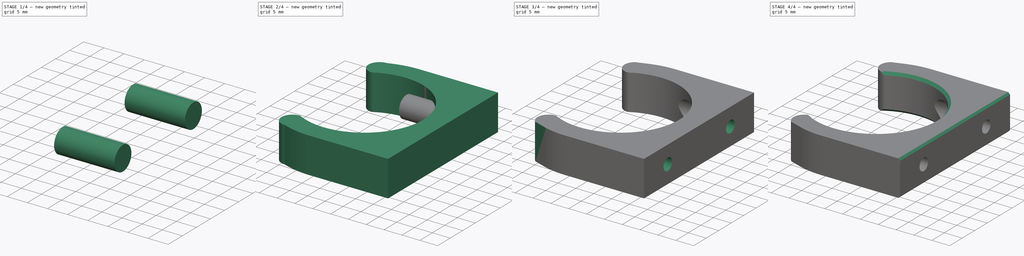
[diagram: build sequence overview — one tinted view per stage of 4, left to right]
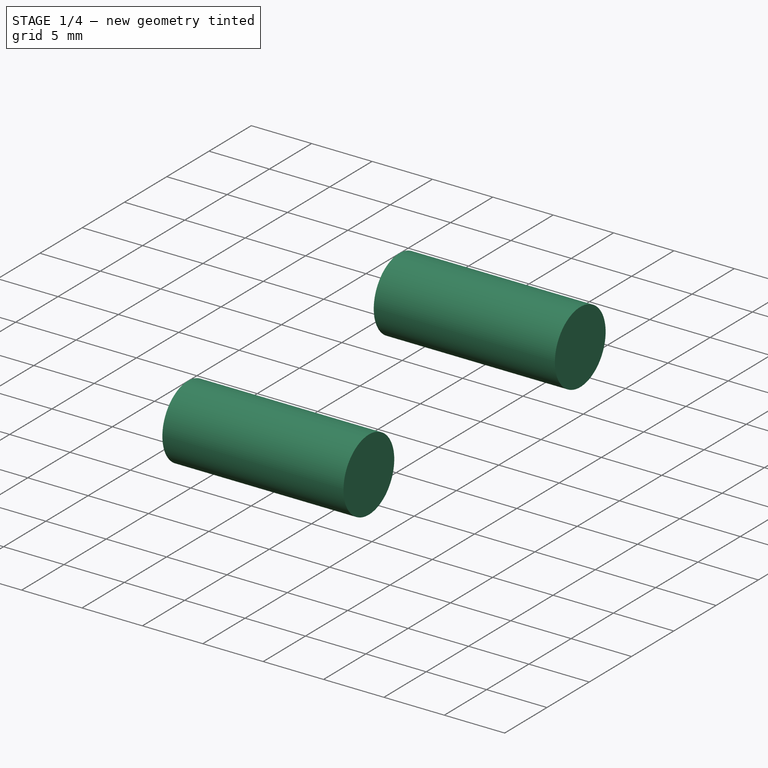
[diagram: stage 1 of 4 — iso view after this stage's code; geometry added in this stage tinted green]
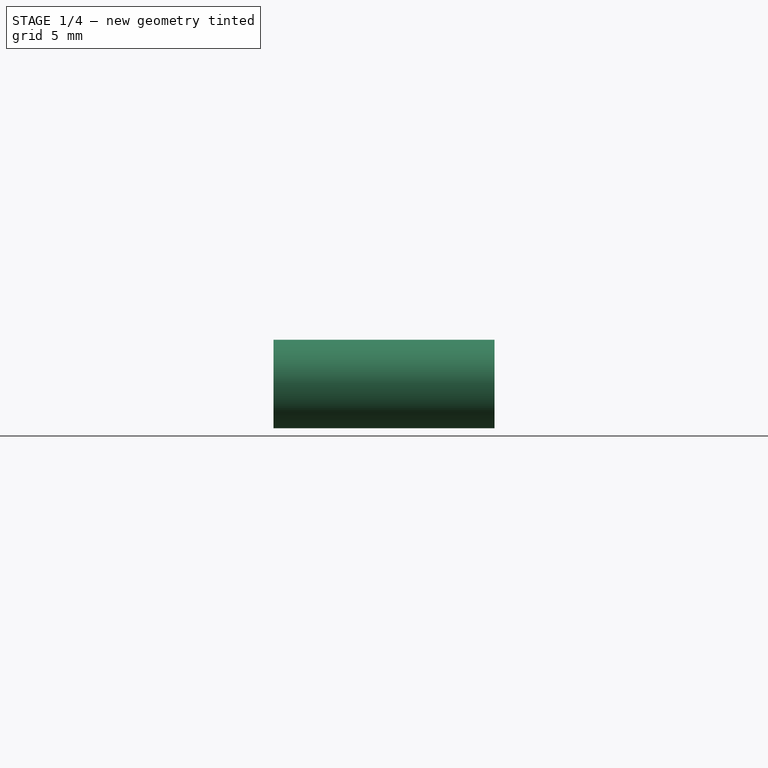
[diagram: stage 1 of 4 — front view after this stage's code; geometry added in this stage tinted green]
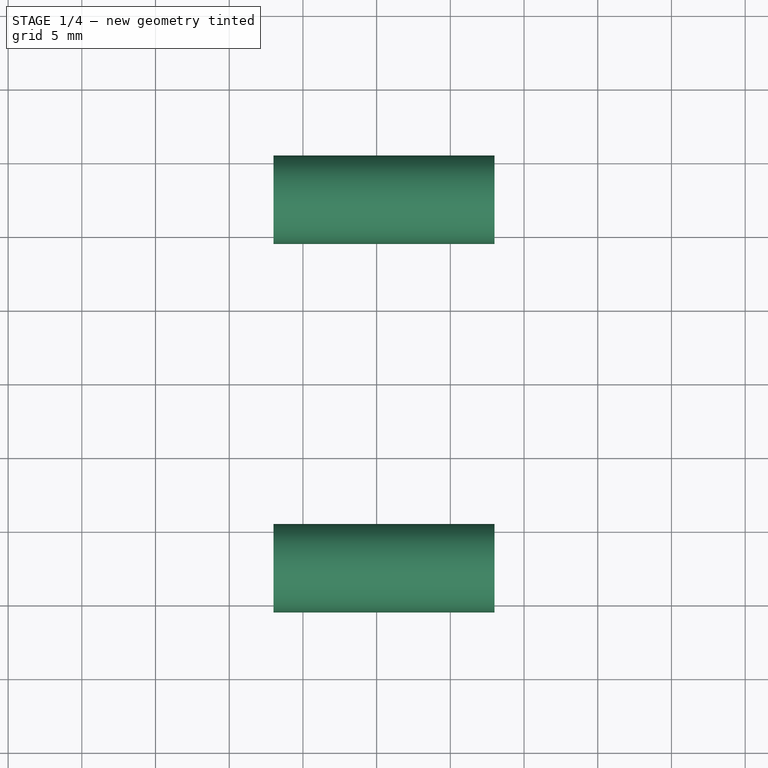
[diagram: stage 1 of 4 — top view after this stage's code; geometry added in this stage tinted green]
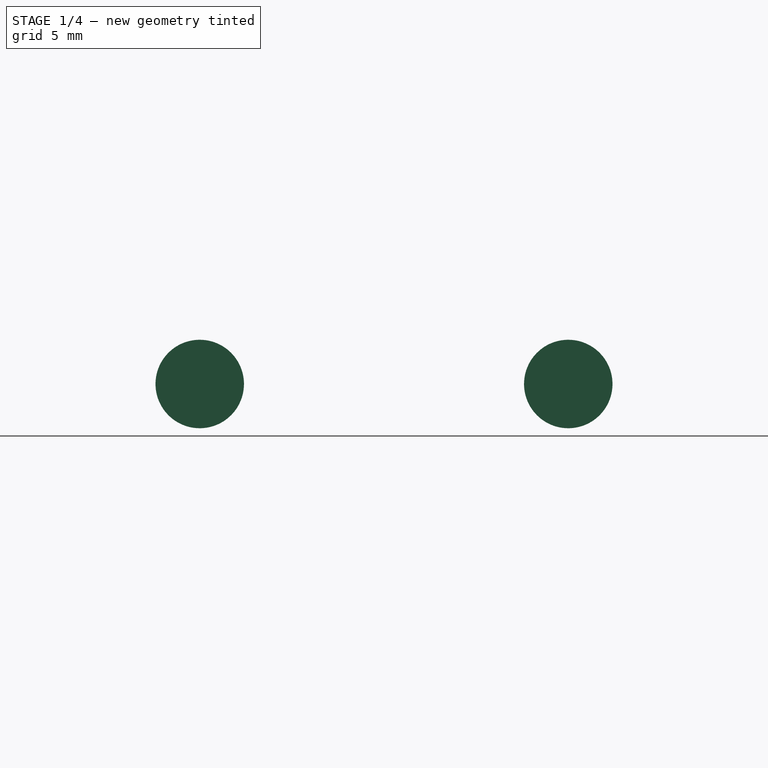
[diagram: stage 1 of 4 — right view after this stage's code; geometry added in this stage tinted green]
FCSTD DOCUMENT  (FreeCAD 0.16R6712 (Git))
Label: cacifo
License: CC-BY 3.0
LicenseURL: http://creativecommons.org/licenses/by/3.0/
objects: PartDesign::Chamfer×3, Sketcher::SketchObject×2, Part::Cylinder×2, PartDesign::Pad×1, PartDesign::Pocket×1, Part::MultiFuse×1, Part::Cut×1
note: 13 computed .brp shape members not serialized (recipe doc carries the construction recipe); baked Part::Feature solids carry a one-line shape summary decoded from their .brp

FEATURE [Part::Cylinder] Cylinder  label="Cilindro"
  Angle = 360
  Height = 15
  Placement = pos=(18,12.5,5) rot=(0,-1,0;1.5708rad)
  Radius = 3
FEATURE [Part::Cylinder] Cylinder001  label="Cilindro001"
  Angle = 360
  Height = 15
  Placement = pos=(18,-12.5,5) rot=(0,-1,0;1.5708rad)
  Radius = 3
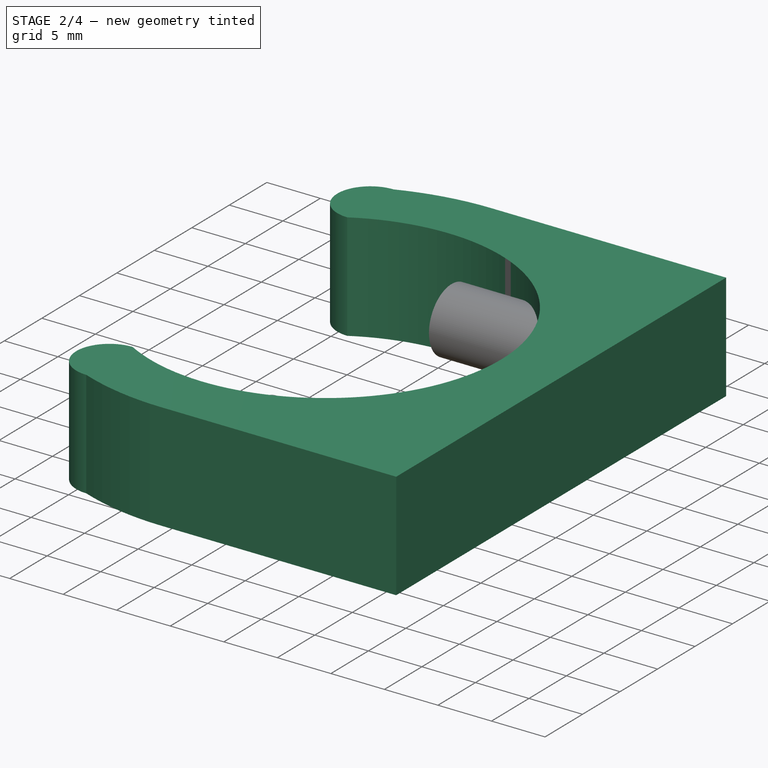
[diagram: stage 2 of 4 — iso view after this stage's code; geometry added in this stage tinted green]
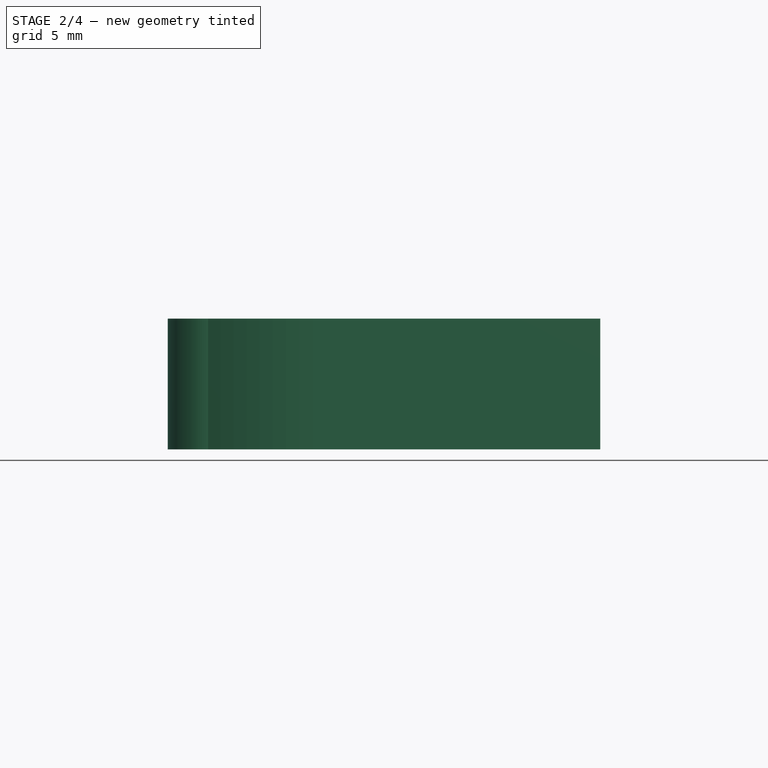
[diagram: stage 2 of 4 — front view after this stage's code; geometry added in this stage tinted green]
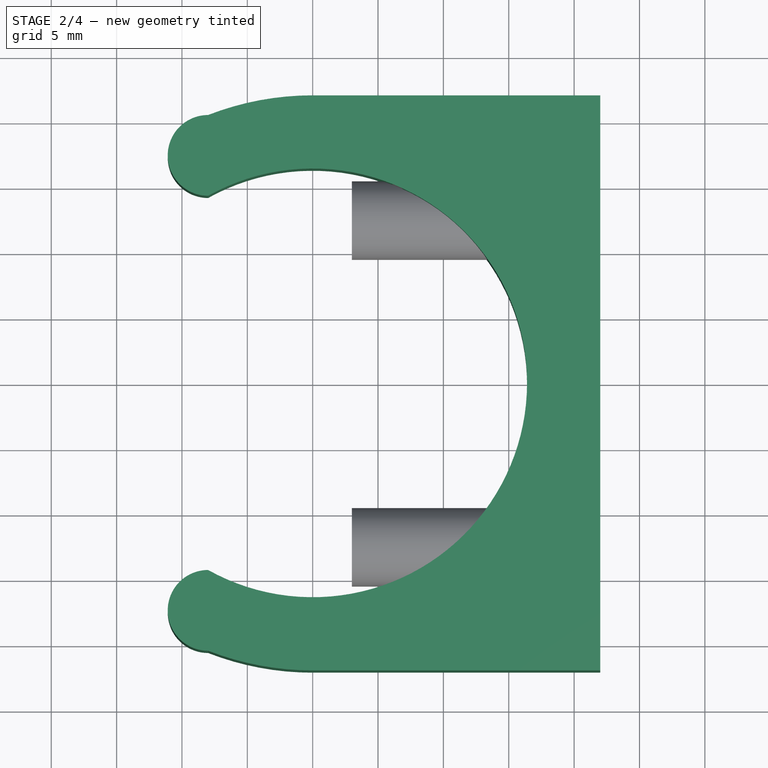
[diagram: stage 2 of 4 — top view after this stage's code; geometry added in this stage tinted green]
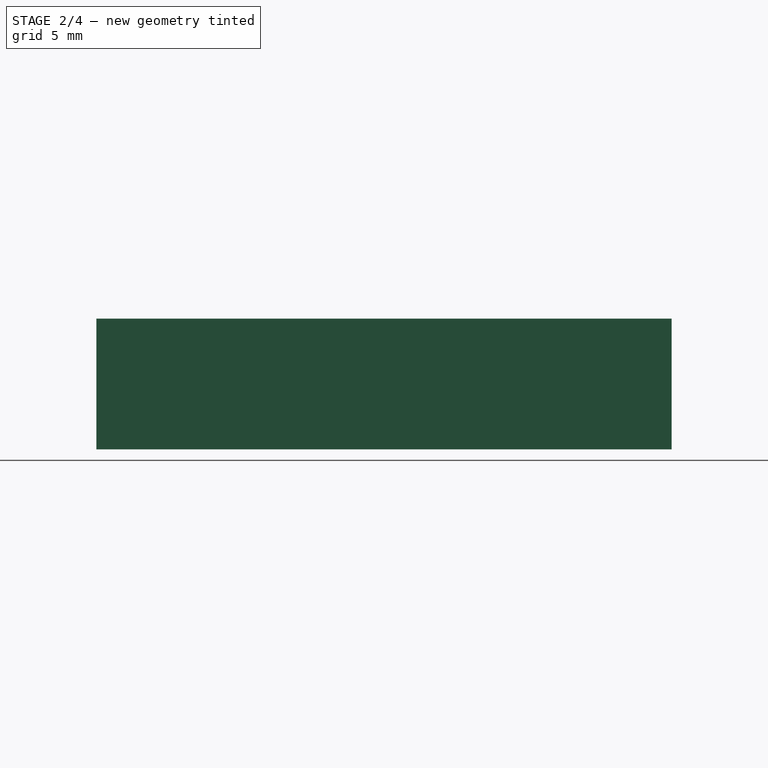
[diagram: stage 2 of 4 — right view after this stage's code; geometry added in this stage tinted green]
FEATURE [Sketcher::SketchObject] Sketch
  sketch-geometry (10):
    g0: ArcOfCircle CenterX=0 CenterY=0 CenterZ=0 NormalX=0 NormalY=0 NormalZ=1 Radius=16.4 StartAngle=4.20282 EndAngle=8.36356
    g1: ArcOfCircle [constr] CenterX=0 CenterY=0 CenterZ=0 NormalX=0 NormalY=0 NormalZ=1 Radius=22 StartAngle=4.34022 EndAngle=8.22615
    g2: ArcOfCircle CenterX=-8 CenterY=17.4052 CenterZ=0 NormalX=0 NormalY=0 NormalZ=1 Radius=3.08874 StartAngle=1.5708 EndAngle=4.71239
    g3: ArcOfCircle CenterX=-8 CenterY=-17.4052 CenterZ=0 NormalX=0 NormalY=0 NormalZ=1 Radius=3.08874 StartAngle=1.5708 EndAngle=4.71239
    g4: LineSegment [constr] StartX=-8 StartY=14.3164 StartZ=0 EndX=-8 EndY=20.4939 EndZ=0
    g5: LineSegment StartX=0 StartY=22 StartZ=0 EndX=22 EndY=22 EndZ=0
    g6: LineSegment StartX=0 StartY=-22 StartZ=0 EndX=22 EndY=-22 EndZ=0
    g7: LineSegment StartX=22 StartY=22 StartZ=0 EndX=22 EndY=-22 EndZ=0
    g8: ArcOfCircle CenterX=0 CenterY=0 CenterZ=0 NormalX=0 NormalY=0 NormalZ=1 Radius=22 StartAngle=1.5708 EndAngle=1.94296
    g9: ArcOfCircle CenterX=0 CenterY=0 CenterZ=0 NormalX=0 NormalY=0 NormalZ=1 Radius=22 StartAngle=4.34022 EndAngle=4.71239
  constraints (32):
    c: Coincident(g0,g-1)
    c: Radius(g0) = 16.4
    c: Symmetric(g0,g0,g-1)
    c: DistanceX(g-1,g0) = -8
    c: Coincident(g1,g-1)
    c: Symmetric(g1,g1,g-1)
    c: Coincident(g2,g0)
    c: Coincident(g2,g1)
    c: Coincident(g3,g1)
    c: Coincident(g3,g0)
    c: Coincident(g4,g0)
    c: Coincident(g4,g1)
    c: PointOnObject(g2,g4)
    c: Radius(g1) = 22
    c: Vertical(g4)
    c: Equal(g3,g2)
    c: Horizontal(g5)
    c: Horizontal(g6)
    c: PointOnObject(g6,g-2)
    c: PointOnObject(g6,g1)
    c: PointOnObject(g5,g-2)
    c: PointOnObject(g5,g1)
    c: Coincident(g7,g5)
    c: Coincident(g7,g6)
    c: Vertical(g7)
    c: Tangent(g7,g1)
    c: Coincident(g8,g-1)
    c: Coincident(g8,g1)
    c: Coincident(g8,g5)
    c: Coincident(g9,g-1)
    c: Coincident(g9,g1)
    c: Coincident(g9,g6)
FEATURE [PartDesign::Pad] Pad
  Length = 10
  Length2 = 100
  Sketch = -> Sketch
  Type = 0
FEATURE [Part::MultiFuse] Fusion
  Shapes = -> [Cylinder001,Cylinder]
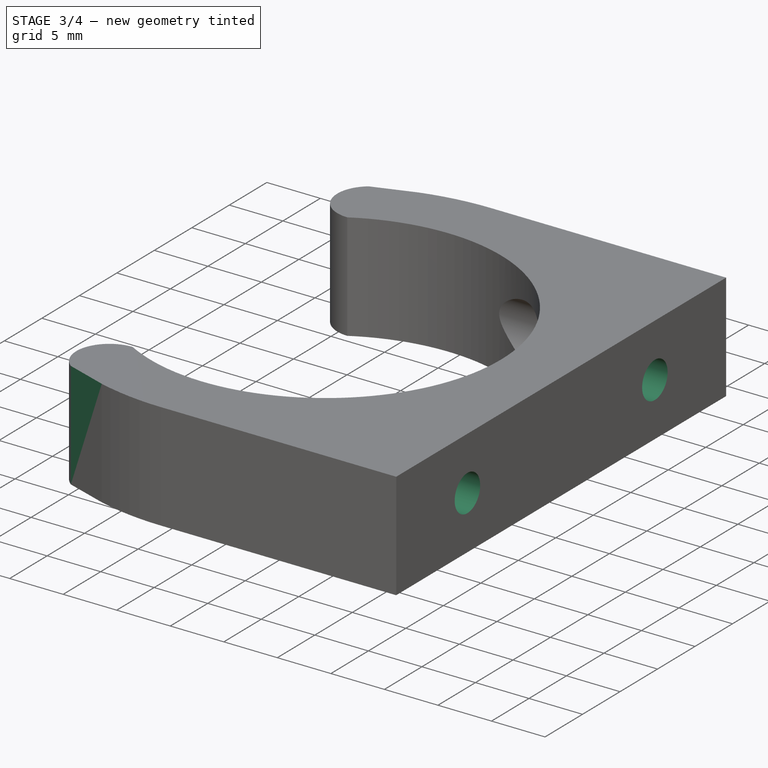
[diagram: stage 3 of 4 — iso view after this stage's code; geometry added in this stage tinted green]
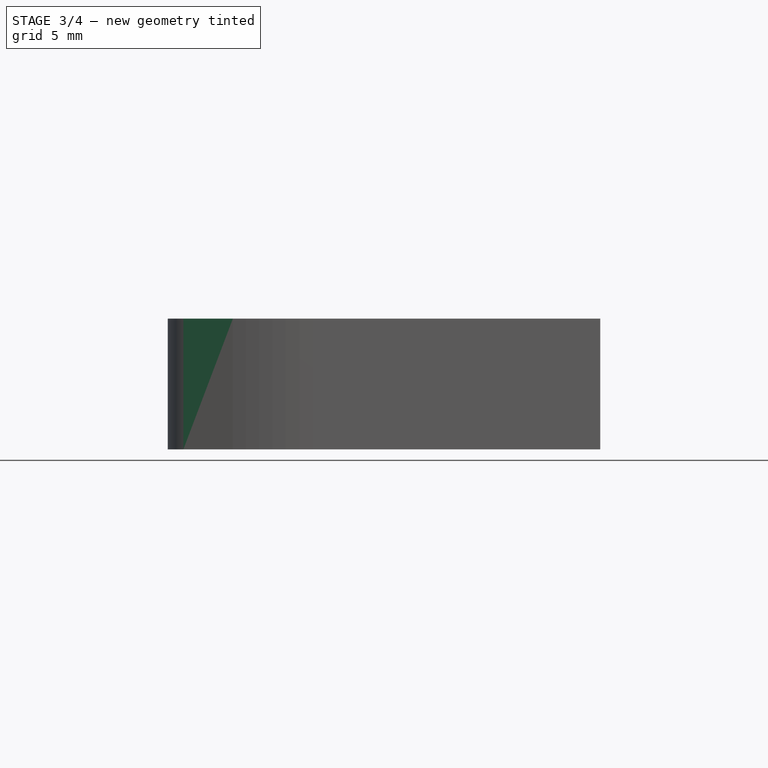
[diagram: stage 3 of 4 — front view after this stage's code; geometry added in this stage tinted green]
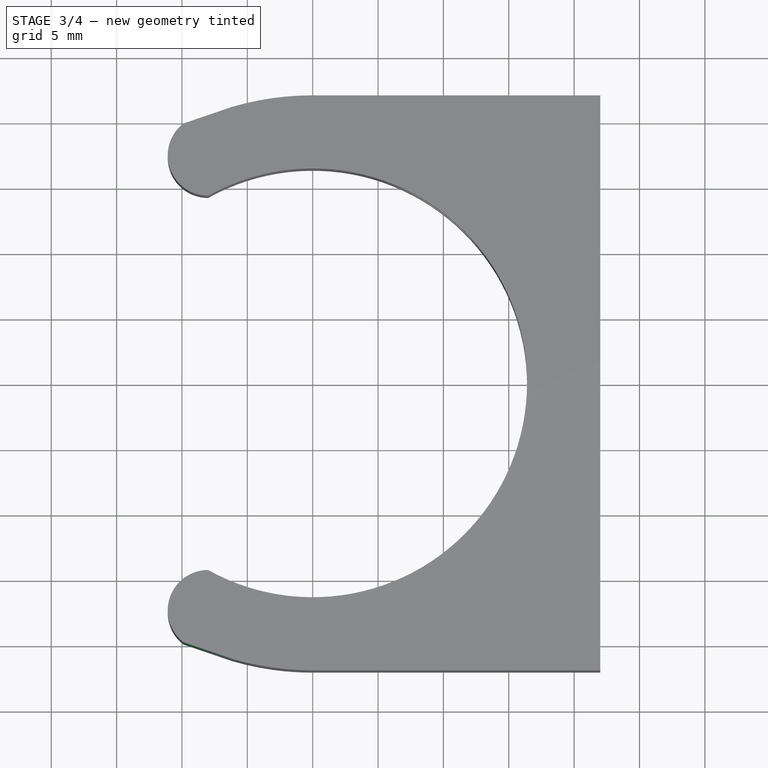
[diagram: stage 3 of 4 — top view after this stage's code; geometry added in this stage tinted green]
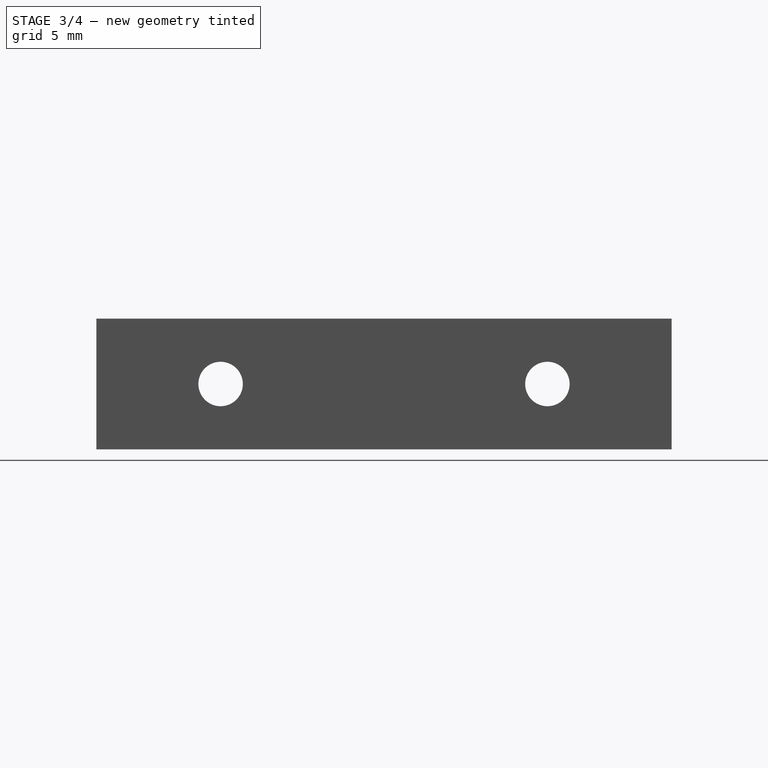
[diagram: stage 3 of 4 — right view after this stage's code; geometry added in this stage tinted green]
FEATURE [Sketcher::SketchObject] Sketch001
  Placement = pos=(22,0,0) rot=(0.57735,0.57735,0.57735;2.0944rad)
  Support = -> Pad [Face6]
  sketch-geometry (2):
    g0: Circle CenterX=-12.5 CenterY=5 CenterZ=0 NormalX=0 NormalY=0 NormalZ=1 Radius=1.7
    g1: Circle CenterX=12.5 CenterY=5 CenterZ=0 NormalX=0 NormalY=0 NormalZ=1 Radius=1.7
  constraints (5):
    c: Symmetric(g0,g1,g-2)
    c: DistanceX(g0,g1) = 25
    c: DistanceY(g-1,g0) = 5
    c: Equal(g0,g1)
    c: Radius(g0) = 1.7
FEATURE [PartDesign::Pocket] Pocket
  Length = 20
  Sketch = -> Sketch001
  Type = 0
FEATURE [Part::Cut] Cut
  Base = -> Pocket
  Tool = -> Fusion
FEATURE [PartDesign::Chamfer] Chamfer
  Base = -> Cut [Edge2,Edge29]
  Size = 2
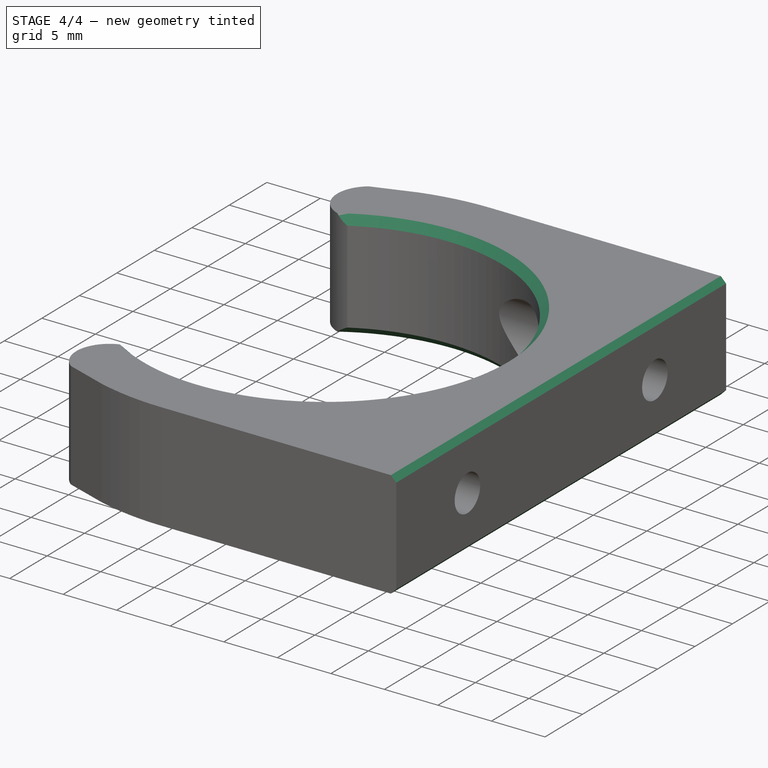
[diagram: stage 4 of 4 — iso view after this stage's code; geometry added in this stage tinted green]
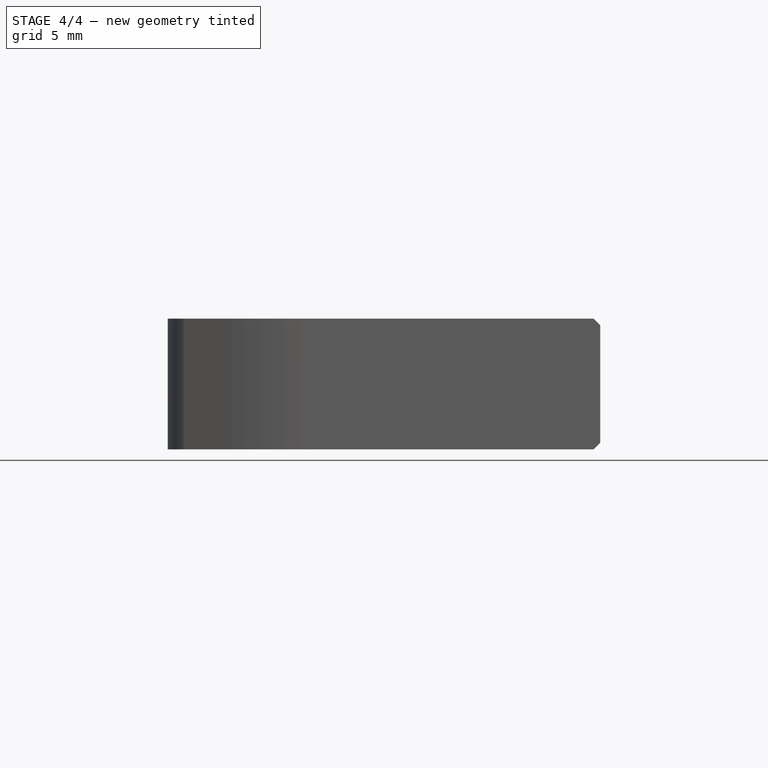
[diagram: stage 4 of 4 — front view after this stage's code; geometry added in this stage tinted green]
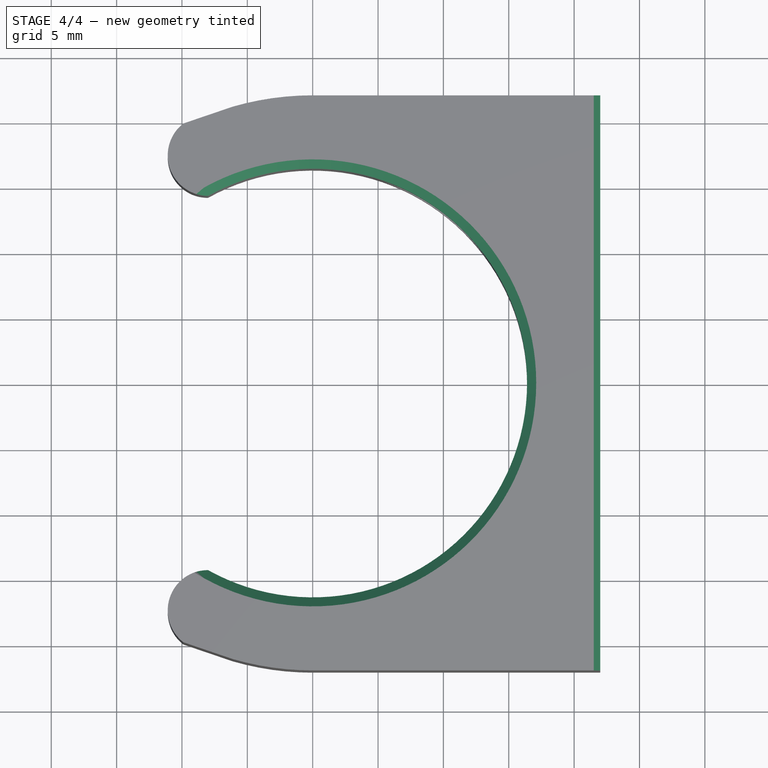
[diagram: stage 4 of 4 — top view after this stage's code; geometry added in this stage tinted green]
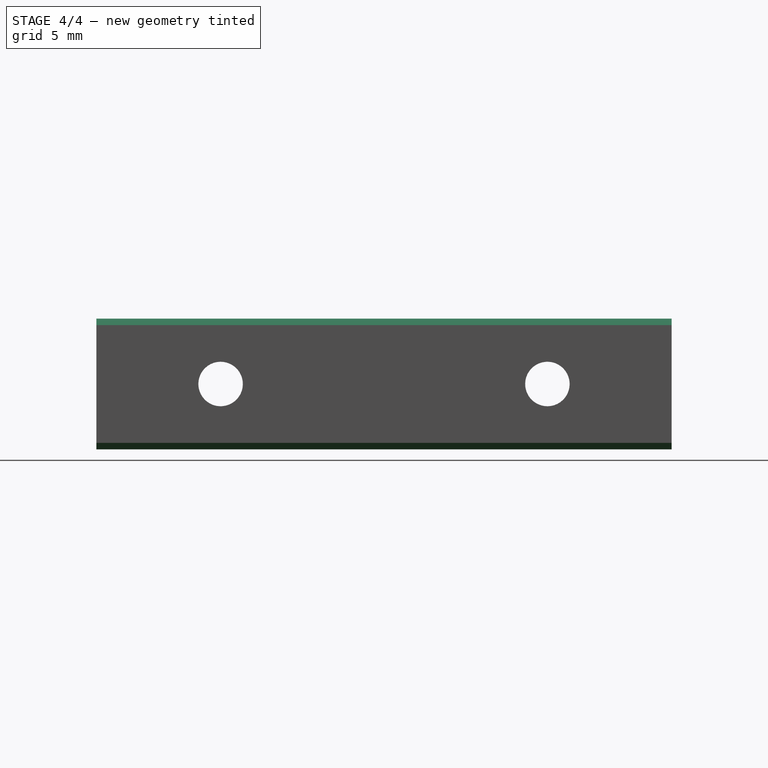
[diagram: stage 4 of 4 — right view after this stage's code; geometry added in this stage tinted green]
FEATURE [PartDesign::Chamfer] Chamfer001
  Base = -> Chamfer [Edge20,Edge6]
  Size = 0.7
FEATURE [PartDesign::Chamfer] Chamfer002
  Base = -> Chamfer001 [Edge14,Edge32]
  Size = 0.5
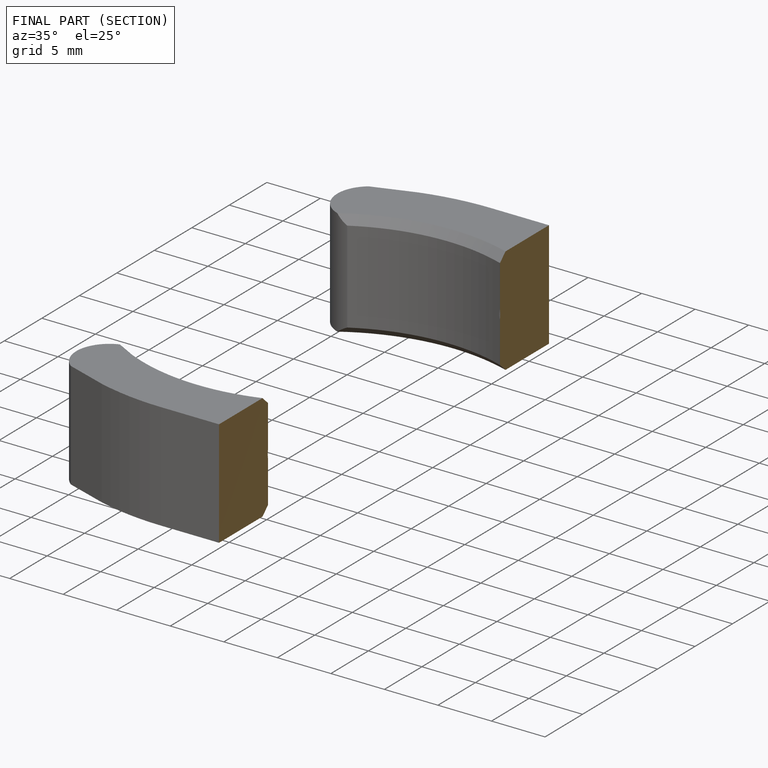
[diagram: finished part — half-section view (interior)]
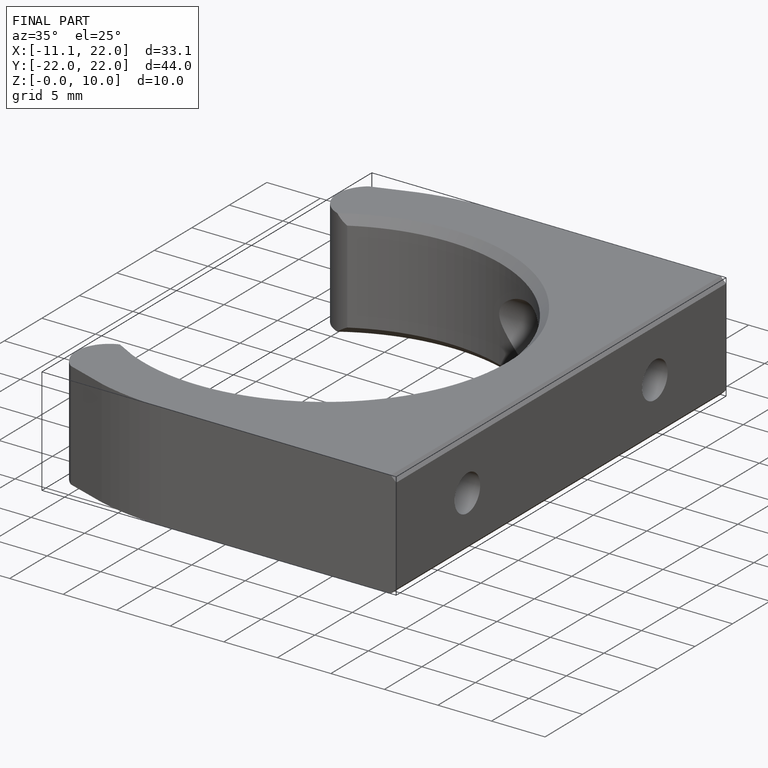
[diagram: finished part — iso view with bounding-box wireframe]
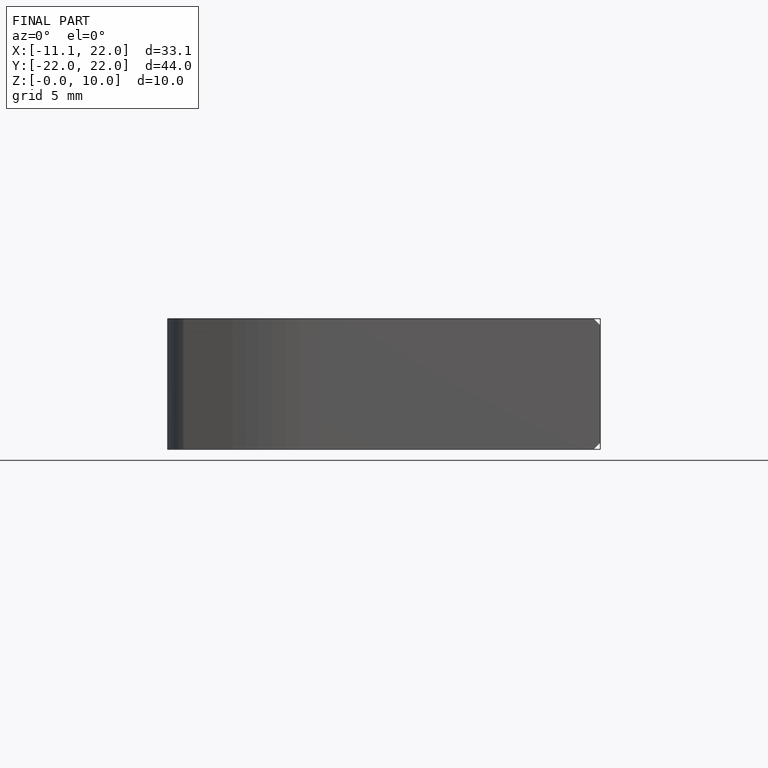
[diagram: finished part — front view with bounding-box wireframe]
